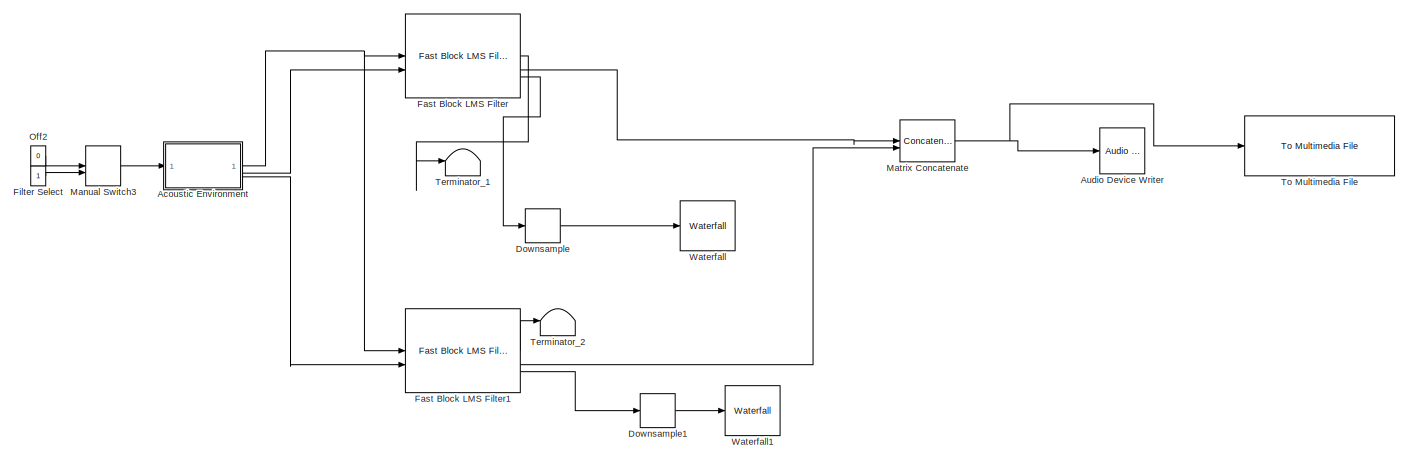
[diagram: root canvas - part 1/2, full width, top band]
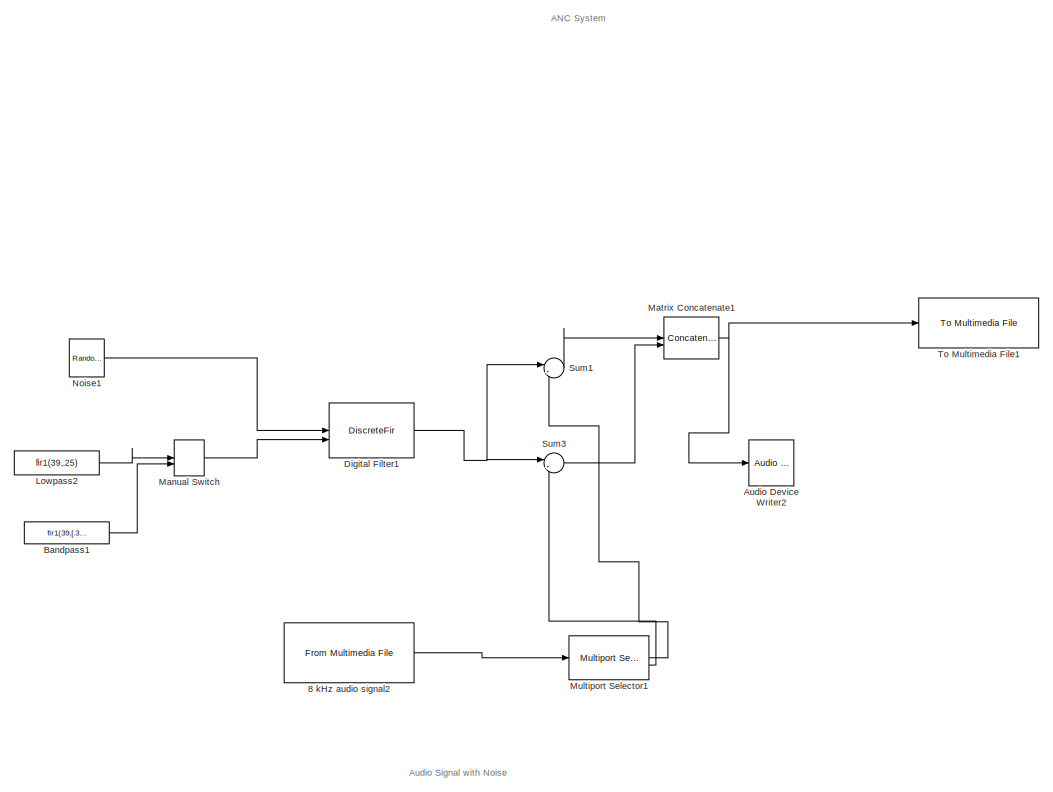
[diagram: root canvas - part 2/2, full width, bottom band]
MODEL slx_d381adcaa4eb
KIND model
CONFIG AbsTol = auto
CONFIG EnableMultiTasking = on
CONFIG FixedStep = auto
CONFIG MaxStep = auto
CONFIG MinStep = auto
CONFIG RelTol = 1e-3
CONFIG SampleTimeConstraint = Unconstrained
CONFIG SolverName = FixedStepDiscrete
CONFIG StartTime = 0.0
CONFIG StopTime = inf
BLOCK [Reference] 8 kHz audio signal2  REF=dspvision/From Multimedia File
  SourceBlock = dspvision/From Multimedia File
  SourceType = From Multimedia File
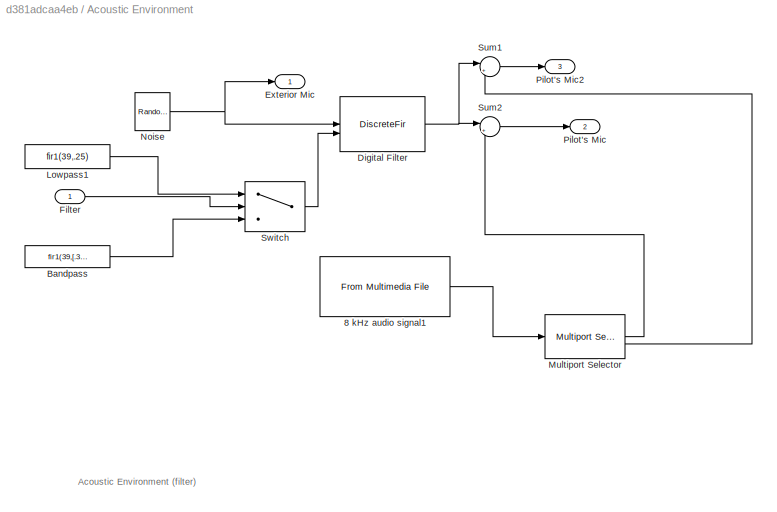
BLOCK [SubSystem] Acoustic Environment
  NameLocation = top
BLOCK [Reference] Acoustic Environment/8 kHz audio signal1  REF=dspvision/From Multimedia File
  SourceBlock = dspvision/From Multimedia File
  SourceType = From Multimedia File
BLOCK [Constant] Acoustic Environment/Bandpass
  NameLocation = top
  OutDataTypeStr = Inherit: Inherit via back propagation
  Value = fir1(39,[.3 .5])
BLOCK [DiscreteFir] Acoustic Environment/Digital Filter
  AccumDataTypeStr = Inherit: Same as product output
  CoefSource = Input port
  Coefficients = [1 2]
  InputPortMap = u0,u1
  InputProcessing = Columns as channels (frame based)
  OutDataTypeStr = Inherit: Same as input
  OutputPortMap = o0
  ProductDataTypeStr = Inherit: Same as input
  StateDataTypeStr = Inherit: Same as input
BLOCK [Outport] Acoustic Environment/Exterior Mic
  NameLocation = top
  VectorParamsAs1DForOutWhenUnconnected = off
BLOCK [Inport] Acoustic Environment/Filter
BLOCK [Constant] Acoustic Environment/Lowpass1
  OutDataTypeStr = Inherit: Inherit via back propagation
  Value = fir1(39,.25)
BLOCK [Reference] Acoustic Environment/Multiport Selector  REF=dspindex/Multiport
Selector
  LibrarySourceBlock = dsphdlsupportsigmgmt/Multiport\nSelector
  SourceBlock = dspindex/Multiport\nSelector
  SourceType = Multiport Selector
BLOCK [Reference] Acoustic Environment/Noise  REF=dspsrcs4/Random
Source
  NameLocation = top
  SourceBlock = dspsrcs4/Random\nSource
  SourceType = Random Source
  UserDataPersistent = on
BLOCK [Outport] Acoustic Environment/Pilot's Mic
  Port = 2
  VectorParamsAs1DForOutWhenUnconnected = off
BLOCK [Outport] Acoustic Environment/Pilot's Mic2
  Port = 3
  VectorParamsAs1DForOutWhenUnconnected = off
BLOCK [Sum] Acoustic Environment/Sum1
  InputSameDT = on
  Inputs = |++
  OutDataTypeStr = Inherit: Same as first input
  SaturateOnIntegerOverflow = on
BLOCK [Sum] Acoustic Environment/Sum2
  InputSameDT = on
  Inputs = |++
  OutDataTypeStr = Inherit: Same as first input
  SaturateOnIntegerOverflow = on
BLOCK [Switch] Acoustic Environment/Switch
  Criteria = u2 ~= 0
  InputSameDT = off
BLOCK [Reference] Audio Device Writer  REF=dspsnks4/Audio Device
Writer
  SourceBlock = dspsnks4/Audio Device\nWriter
  SourceType = Audio Device Writer
BLOCK [Reference] Audio Device Writer2  REF=dspsnks4/Audio Device
Writer
  SourceBlock = dspsnks4/Audio Device\nWriter
  SourceType = Audio Device Writer
BLOCK [Constant] Bandpass1
  NameLocation = top
  OutDataTypeStr = Inherit: Inherit via back propagation
  Value = fir1(39,[.3 .5])
BLOCK [DiscreteFir] Digital Filter1
  AccumDataTypeStr = Inherit: Same as product output
  CoefSource = Input port
  Coefficients = [1 2]
  InputPortMap = u0,u1
  InputProcessing = Columns as channels (frame based)
  OutDataTypeStr = Inherit: Same as input
  OutputPortMap = o0
  ProductDataTypeStr = Inherit: Same as input
  StateDataTypeStr = Inherit: Same as input
BLOCK [DownSample] Downsample
  InputProcessing = Elements as channels (sample based)
  N = 32
  RateOptions = Allow multirate processing
  UserDataPersistent = on
BLOCK [DownSample] Downsample1
  InputProcessing = Elements as channels (sample based)
  N = 32
  RateOptions = Allow multirate processing
  UserDataPersistent = on
BLOCK [Reference] Fast Block LMS Filter  REF=dspadpt3/Fast Block LMS Filter
  SourceBlock = dspadpt3/Fast Block LMS Filter
  SourceType = Fast Block LMS Filter
BLOCK [Reference] Fast Block LMS Filter1  REF=dspadpt3/Fast Block LMS Filter
  SourceBlock = dspadpt3/Fast Block LMS Filter
  SourceType = Fast Block LMS Filter
BLOCK [Constant] Filter Select
  OutDataTypeStr = boolean
BLOCK [Constant] Lowpass2
  OutDataTypeStr = Inherit: Inherit via back propagation
  Value = fir1(39,.25)
BLOCK [ManualSwitch] Manual Switch
BLOCK [ManualSwitch] Manual Switch3
  CurrentSetting = 0
  NameLocation = top
BLOCK [Concatenate] Matrix Concatenate
  ConcatenateDimension = 2
  Mode = Multidimensional array
BLOCK [Concatenate] Matrix Concatenate1
  ConcatenateDimension = 2
  Mode = Multidimensional array
BLOCK [Reference] Multiport Selector1  REF=dspindex/Multiport
Selector
  LibrarySourceBlock = dsphdlsupportsigmgmt/Multiport\nSelector
  SourceBlock = dspindex/Multiport\nSelector
  SourceType = Multiport Selector
BLOCK [Reference] Noise1  REF=dspsrcs4/Random
Source
  NameLocation = top
  SourceBlock = dspsrcs4/Random\nSource
  SourceType = Random Source
  UserDataPersistent = on
BLOCK [Constant] Off2
  NameLocation = top
  OutDataTypeStr = boolean
  Value = 0
BLOCK [Sum] Sum1
  InputSameDT = on
  Inputs = |++
  OutDataTypeStr = Inherit: Same as first input
  SaturateOnIntegerOverflow = on
BLOCK [Sum] Sum3
  InputSameDT = on
  Inputs = |++
  OutDataTypeStr = Inherit: Same as first input
  SaturateOnIntegerOverflow = on
BLOCK [Terminator] Terminator_1
BLOCK [Terminator] Terminator_2
BLOCK [Reference] To Multimedia File  REF=dspvision/To Multimedia File
  LibrarySourceBlock = dspsnks4/To Multimedia File
  SourceBlock = dspvision/To Multimedia File
  SourceType = To Multimedia File
BLOCK [Reference] To Multimedia File1  REF=dspvision/To Multimedia File
  LibrarySourceBlock = dspsnks4/To Multimedia File
  SourceBlock = dspvision/To Multimedia File
  SourceType = To Multimedia File
BLOCK [Reference] Waterfall  REF=dspobslib/Waterfall
  SourceBlock = dspobslib/Waterfall
  SourceType = Waterfall
BLOCK [Reference] Waterfall1  REF=dspobslib/Waterfall
  SourceBlock = dspobslib/Waterfall
  SourceType = Waterfall
ANNOTATION (root): Audio Signal with Noise
ANNOTATION (root): ANC System
ANNOTATION Acoustic Environment: Acoustic Environment (filter)
LINE 8 kHz audio signal2:1 -> Multiport Selector1:1
LINE Acoustic Environment/8 kHz audio signal1:1 -> Acoustic Environment/Multiport Selector:1
LINE Acoustic Environment/Bandpass:1 -> Acoustic Environment/Switch:3
NET Acoustic Environment/Digital Filter:1 -> Acoustic Environment/Sum1:1, Acoustic Environment/Sum2:1
LINE Acoustic Environment/Filter:1 -> Acoustic Environment/Switch:2
LINE Acoustic Environment/Lowpass1:1 -> Acoustic Environment/Switch:1
LINE Acoustic Environment/Multiport Selector:1 -> Acoustic Environment/Sum2:2
LINE Acoustic Environment/Multiport Selector:2 -> Acoustic Environment/Sum1:2
NET Acoustic Environment/Noise:1 -> Acoustic Environment/Digital Filter:1, Acoustic Environment/Exterior Mic:1
LINE Acoustic Environment/Sum1:1 -> Acoustic Environment/Pilot's Mic2:1
LINE Acoustic Environment/Sum2:1 -> Acoustic Environment/Pilot's Mic:1
LINE Acoustic Environment/Switch:1 -> Acoustic Environment/Digital Filter:2
NET Acoustic Environment:1 -> Fast Block LMS Filter1:1, Fast Block LMS Filter:1
LINE Acoustic Environment:2 -> Fast Block LMS Filter:2
LINE Acoustic Environment:3 -> Fast Block LMS Filter1:2
LINE Bandpass1:1 -> Manual Switch:2
NET Digital Filter1:1 -> Sum1:1, Sum3:1
LINE Downsample1:1 -> Waterfall1:1
LINE Downsample:1 -> Waterfall:1
LINE Fast Block LMS Filter1:1 -> Terminator_2:1
LINE Fast Block LMS Filter1:2 -> Matrix Concatenate:2
LINE Fast Block LMS Filter1:3 -> Downsample1:1
LINE Fast Block LMS Filter:1 -> Terminator_1:1
LINE Fast Block LMS Filter:2 -> Matrix Concatenate:1
LINE Fast Block LMS Filter:3 -> Downsample:1
LINE Filter Select:1 -> Manual Switch3:2
LINE Lowpass2:1 -> Manual Switch:1
LINE Manual Switch3:1 -> Acoustic Environment:1
LINE Manual Switch:1 -> Digital Filter1:2
NET Matrix Concatenate1:1 -> Audio Device Writer2:1, To Multimedia File1:1
NET Matrix Concatenate:1 -> Audio Device Writer:1, To Multimedia File:1
LINE Multiport Selector1:1 -> Sum1:2
LINE Multiport Selector1:2 -> Sum3:2
LINE Noise1:1 -> Digital Filter1:1
LINE Off2:1 -> Manual Switch3:1
LINE Sum1:1 -> Matrix Concatenate1:1
LINE Sum3:1 -> Matrix Concatenate1:2
note: NET lines group one-source signal fan-out (src -> all destinations, sorted); 1:1 wires keep LINE
